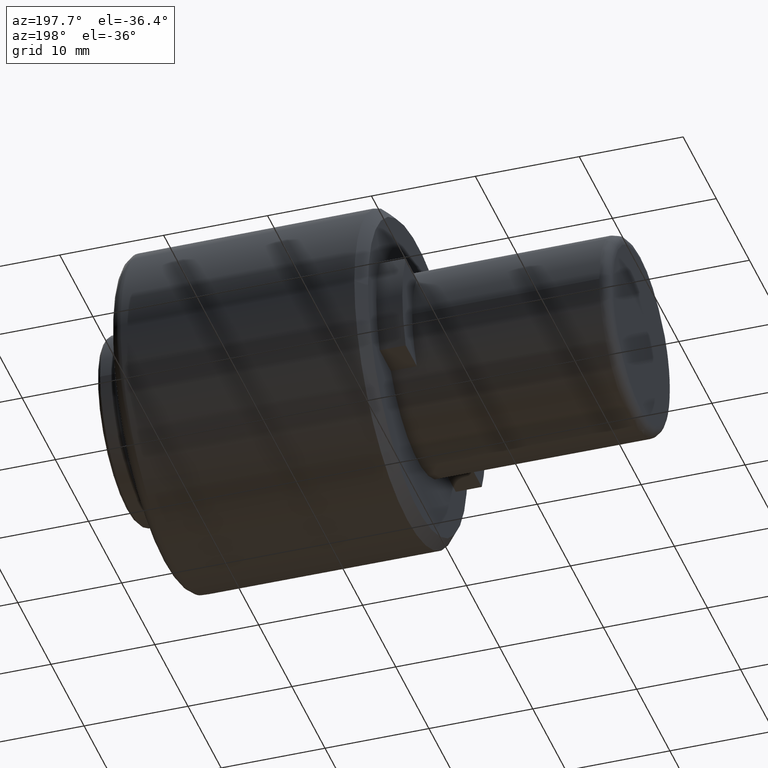
[diagram: clean part render]
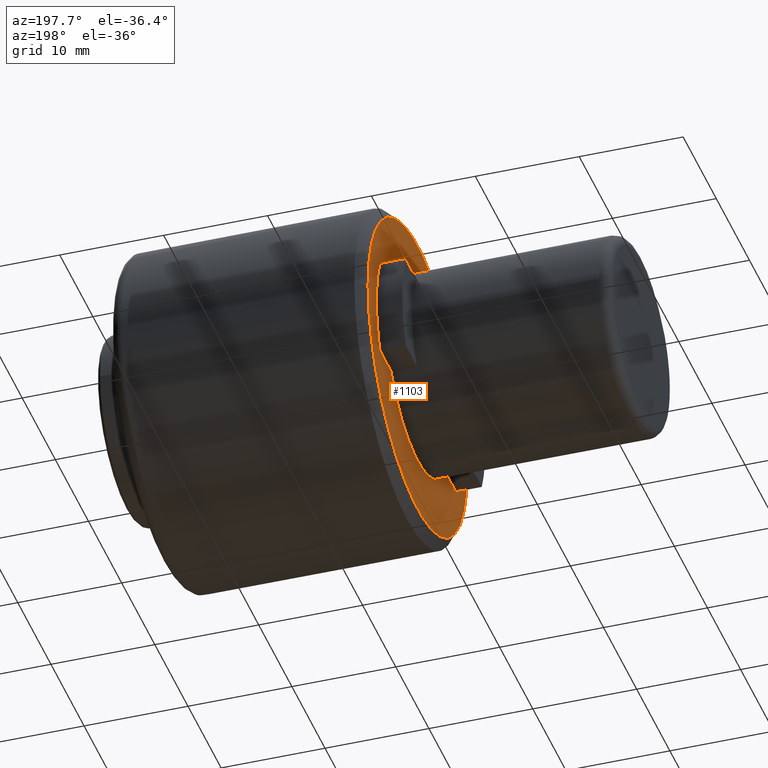
[diagram: same view with one face highlighted and labeled with its STEP entity id]
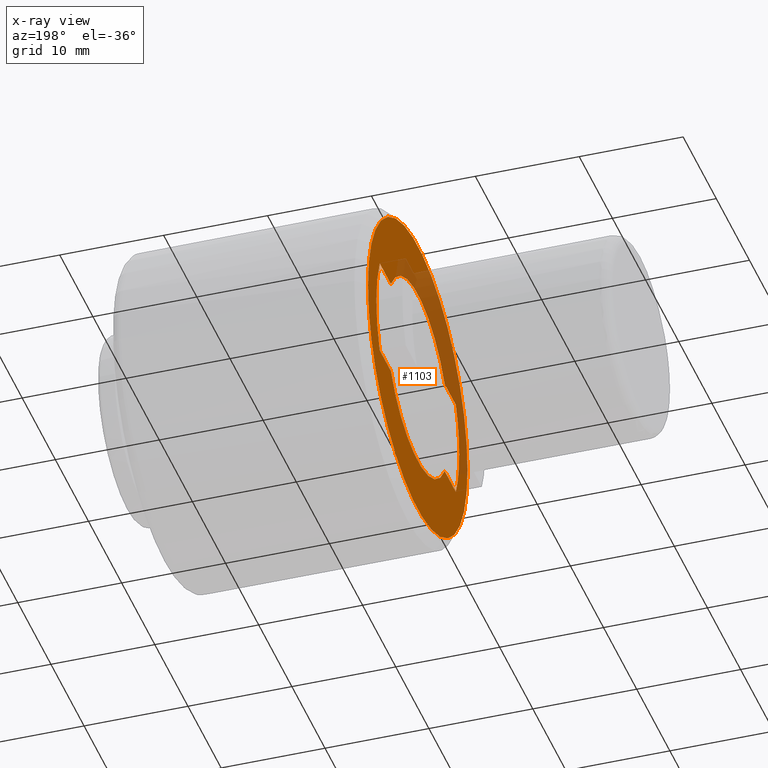
[diagram: x-ray of the same camera — body ghosted, the highlighted face saturated]
A machine part, auxiliary view. The second image highlights one B-rep face of the part: STEP entity #1103.
The next image is the same camera in x-ray: the body ghosted, the highlighted face saturated — about 28% of this face is hidden behind the body in this view.
In plain terms, the highlighted planar face has unit normal (1, -0, 0).
Its self-contained STEP definition (entity closure, byte-faithful):
#7 = DIRECTION ( 'NONE',  ( 2.775557561562891400E-016, -1.000000000000000000, 0.0000000000000000000 ) ) ;
#62 = ORIENTED_EDGE ( 'NONE', *, *, #544, .F. ) ;
#74 = VERTEX_POINT ( 'NONE', #388 ) ;
#103 = VECTOR ( 'NONE', #277, 1000.000000000000000 ) ;
#119 = EDGE_CURVE ( 'NONE', #542, #386, #439, .T. ) ;
#127 = CARTESIAN_POINT ( 'NONE',  ( 21.49999999999996800, -4.212971753347065100E-030, 0.0000000000000000000 ) ) ;
#141 = AXIS2_PLACEMENT_3D ( 'NONE', #237, #1213, #771 ) ;
#142 = VERTEX_POINT ( 'NONE', #283 ) ;
#149 = DIRECTION ( 'NONE',  ( 0.0000000000000000000, 1.000000000000000000, 0.0000000000000000000 ) ) ;
#153 = ORIENTED_EDGE ( 'NONE', *, *, #119, .F. ) ;
#172 = CARTESIAN_POINT ( 'NONE',  ( 21.50000000000000400, -8.108483214452393300, -4.949999996054926600 ) ) ;
#203 = CIRCLE ( 'NONE', #361, 12.50000000000000000 ) ;
#234 = EDGE_CURVE ( 'NONE', #74, #1177, #1107, .T. ) ;
#236 = DIRECTION ( 'NONE',  ( 1.000000000000000000, 1.156482317317871700E-016, -0.0000000000000000000 ) ) ;
#237 = CARTESIAN_POINT ( 'NONE',  ( 21.50000000000000000, -2.210607693693726000E-031, 0.0000000000000000000 ) ) ;
#270 = CARTESIAN_POINT ( 'NONE',  ( 21.50000000000000000, 0.0000000000000000000, -4.949999992080006600 ) ) ;
#272 = EDGE_CURVE ( 'NONE', #828, #1020, #940, .T. ) ;
#274 = VERTEX_POINT ( 'NONE', #986 ) ;
#277 = DIRECTION ( 'NONE',  ( 0.0000000000000000000, 1.000000000000000000, 0.0000000000000000000 ) ) ;
#283 = CARTESIAN_POINT ( 'NONE',  ( 21.50000000000000000, -11.47813138271872400, -4.949999996040002500 ) ) ;
#299 = DIRECTION ( 'NONE',  ( 1.000000000000000000, -0.0000000000000000000, 0.0000000000000000000 ) ) ;
#316 = CARTESIAN_POINT ( 'NONE',  ( 21.50000000000000000, 0.0000000000000000000, 4.949999992079996900 ) ) ;
#326 = AXIS2_PLACEMENT_3D ( 'NONE', #127, #775, #433 ) ;
#327 = EDGE_CURVE ( 'NONE', #386, #852, #1180, .T. ) ;
#345 = DIRECTION ( 'NONE',  ( 0.0000000000000000000, 0.0000000000000000000, -1.000000000000000000 ) ) ;
#355 = DIRECTION ( 'NONE',  ( 1.000000000000000000, 1.826024711554533900E-016, 0.0000000000000000000 ) ) ;
#357 = EDGE_CURVE ( 'NONE', #142, #542, #1035, .T. ) ;
#361 = AXIS2_PLACEMENT_3D ( 'NONE', #543, #1150, #1039 ) ;
#368 = CARTESIAN_POINT ( 'NONE',  ( 21.50000000000000000, 8.108483214896875100, -4.949999995326831700 ) ) ;
#370 = VECTOR ( 'NONE', #780, 1000.000000000000000 ) ;
#373 = ORIENTED_EDGE ( 'NONE', *, *, #1224, .F. ) ;
#386 = VERTEX_POINT ( 'NONE', #929 ) ;
#388 = CARTESIAN_POINT ( 'NONE',  ( 21.49999999999996800, 14.99999999999996300, 0.0000000000000000000 ) ) ;
#415 = VECTOR ( 'NONE', #149, 1000.000000000000000 ) ;
#423 = FACE_OUTER_BOUND ( 'NONE', #913, .T. ) ;
#433 = DIRECTION ( 'NONE',  ( 0.0000000000000000000, 1.000000000000000000, 0.0000000000000000000 ) ) ;
#437 = CARTESIAN_POINT ( 'NONE',  ( 21.50000000000000000, -15.18000000000000100, 15.18000000000000100 ) ) ;
#439 = CIRCLE ( 'NONE', #141, 12.50000000000000000 ) ;
#445 = CARTESIAN_POINT ( 'NONE',  ( 21.49999999999996800, -4.212971753347065100E-030, 0.0000000000000000000 ) ) ;
#521 = CARTESIAN_POINT ( 'NONE',  ( 21.50000000000000000, 11.47813138271872700, 4.949999996039999000 ) ) ;
#525 = VECTOR ( 'NONE', #832, 1000.000000000000000 ) ;
#542 = VERTEX_POINT ( 'NONE', #806 ) ;
#543 = CARTESIAN_POINT ( 'NONE',  ( 21.50000000000000000, 2.210607693131455000E-031, 0.0000000000000000000 ) ) ;
#544 = EDGE_CURVE ( 'NONE', #1095, #1020, #796, .T. ) ;
#584 = FACE_BOUND ( 'NONE', #689, .T. ) ;
#595 = ORIENTED_EDGE ( 'NONE', *, *, #272, .T. ) ;
#609 = LINE ( 'NONE', #741, #525 ) ;
#617 = DIRECTION ( 'NONE',  ( 3.652049423109067300E-016, -1.000000000000000000, 0.0000000000000000000 ) ) ;
#635 = PLANE ( 'NONE',  #992 ) ;
#640 = ORIENTED_EDGE ( 'NONE', *, *, #1031, .F. ) ;
#669 = CARTESIAN_POINT ( 'NONE',  ( 21.50000000000000000, -1.299390903533431500E-040, 0.0000000000000000000 ) ) ;
#689 = EDGE_LOOP ( 'NONE', ( #373, #1074, #1207, #153, #862, #1051, #595, #62, #640 ) ) ;
#697 = EDGE_CURVE ( 'NONE', #1177, #74, #800, .T. ) ;
#725 = VERTEX_POINT ( 'NONE', #521 ) ;
#741 = CARTESIAN_POINT ( 'NONE',  ( 21.50000000000000000, 0.0000000000000000000, -4.949999992080006600 ) ) ;
#759 = AXIS2_PLACEMENT_3D ( 'NONE', #914, #355, #1024 ) ;
#771 = DIRECTION ( 'NONE',  ( 2.775557561562891400E-016, -1.000000000000000000, 0.0000000000000000000 ) ) ;
#775 = DIRECTION ( 'NONE',  ( 1.000000000000000000, 1.156482317317871700E-016, -0.0000000000000000000 ) ) ;
#780 = DIRECTION ( 'NONE',  ( -0.0000000000000000000, -1.000000000000000000, -0.0000000000000000000 ) ) ;
#796 = LINE ( 'NONE', #270, #370 ) ;
#799 = AXIS2_PLACEMENT_3D ( 'NONE', #1214, #1009, #7 ) ;
#800 = CIRCLE ( 'NONE', #326, 14.99999999999996300 ) ;
#806 = CARTESIAN_POINT ( 'NONE',  ( 21.50000000000000400, -12.50000000000000000, 0.0000000000000000000 ) ) ;
#812 = DIRECTION ( 'NONE',  ( 0.0000000000000000000, 1.000000000000000000, 0.0000000000000000000 ) ) ;
#813 = CARTESIAN_POINT ( 'NONE',  ( 21.50000000000000400, -8.108483213881616100, 4.949999996989907600 ) ) ;
#828 = VERTEX_POINT ( 'NONE', #172 ) ;
#832 = DIRECTION ( 'NONE',  ( -0.0000000000000000000, -1.000000000000000000, -0.0000000000000000000 ) ) ;
#849 = EDGE_CURVE ( 'NONE', #274, #852, #863, .T. ) ;
#852 = VERTEX_POINT ( 'NONE', #813 ) ;
#862 = ORIENTED_EDGE ( 'NONE', *, *, #357, .F. ) ;
#863 = CIRCLE ( 'NONE', #759, 9.500000000000000000 ) ;
#887 = CARTESIAN_POINT ( 'NONE',  ( 21.50000000000000000, 0.0000000000000000000, 4.949999992079996900 ) ) ;
#902 = DIRECTION ( 'NONE',  ( 1.000000000000000000, 1.826024711554533900E-016, 0.0000000000000000000 ) ) ;
#903 = CARTESIAN_POINT ( 'NONE',  ( 21.50000000000000000, 11.47813138271872400, -4.949999996040002500 ) ) ;
#913 = EDGE_LOOP ( 'NONE', ( #999, #1118 ) ) ;
#914 = CARTESIAN_POINT ( 'NONE',  ( 21.50000000000000000, 2.703665273145965100E-031, 0.0000000000000000000 ) ) ;
#929 = CARTESIAN_POINT ( 'NONE',  ( 21.50000000000000000, -11.47813138271872700, 4.949999996039999000 ) ) ;
#940 = CIRCLE ( 'NONE', #1110, 9.500000000000000000 ) ;
#948 = CARTESIAN_POINT ( 'NONE',  ( 21.49999999999996800, -14.99999999999996300, 1.898202538678395200E-015 ) ) ;
#950 = AXIS2_PLACEMENT_3D ( 'NONE', #445, #236, #812 ) ;
#986 = CARTESIAN_POINT ( 'NONE',  ( 21.50000000000000000, 8.108483213437139600, 4.949999997717991800 ) ) ;
#992 = AXIS2_PLACEMENT_3D ( 'NONE', #437, #299, #345 ) ;
#999 = ORIENTED_EDGE ( 'NONE', *, *, #234, .F. ) ;
#1009 = DIRECTION ( 'NONE',  ( -1.000000000000000000, -1.387778780781445700E-016, -0.0000000000000000000 ) ) ;
#1020 = VERTEX_POINT ( 'NONE', #368 ) ;
#1024 = DIRECTION ( 'NONE',  ( 3.652049423109067300E-016, -1.000000000000000000, -8.881784197001252300E-016 ) ) ;
#1027 = EDGE_CURVE ( 'NONE', #828, #142, #609, .T. ) ;
#1031 = EDGE_CURVE ( 'NONE', #725, #1095, #203, .T. ) ;
#1035 = CIRCLE ( 'NONE', #799, 12.50000000000000000 ) ;
#1039 = DIRECTION ( 'NONE',  ( 2.775557561562891400E-016, -1.000000000000000000, 0.0000000000000000000 ) ) ;
#1051 = ORIENTED_EDGE ( 'NONE', *, *, #1027, .F. ) ;
#1074 = ORIENTED_EDGE ( 'NONE', *, *, #849, .T. ) ;
#1091 = LINE ( 'NONE', #316, #103 ) ;
#1095 = VERTEX_POINT ( 'NONE', #903 ) ;
#1103 = ADVANCED_FACE ( 'NONE', ( #584, #423 ), #635, .F. ) ;
#1107 = CIRCLE ( 'NONE', #950, 14.99999999999996300 ) ;
#1110 = AXIS2_PLACEMENT_3D ( 'NONE', #669, #902, #617 ) ;
#1118 = ORIENTED_EDGE ( 'NONE', *, *, #697, .F. ) ;
#1150 = DIRECTION ( 'NONE',  ( -1.000000000000000000, -1.387778780781445700E-016, -0.0000000000000000000 ) ) ;
#1177 = VERTEX_POINT ( 'NONE', #948 ) ;
#1180 = LINE ( 'NONE', #887, #415 ) ;
#1207 = ORIENTED_EDGE ( 'NONE', *, *, #327, .F. ) ;
#1213 = DIRECTION ( 'NONE',  ( -1.000000000000000000, -1.387778780781445700E-016, -0.0000000000000000000 ) ) ;
#1214 = CARTESIAN_POINT ( 'NONE',  ( 21.50000000000000000, -2.210607693693726000E-031, 0.0000000000000000000 ) ) ;
#1224 = EDGE_CURVE ( 'NONE', #274, #725, #1091, .T. ) ;